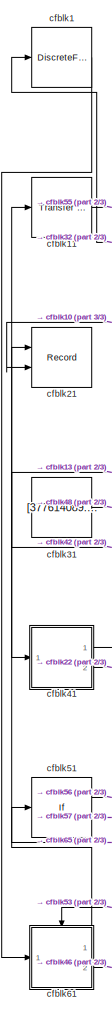
[diagram: root canvas - part 1/3, left side, full height]
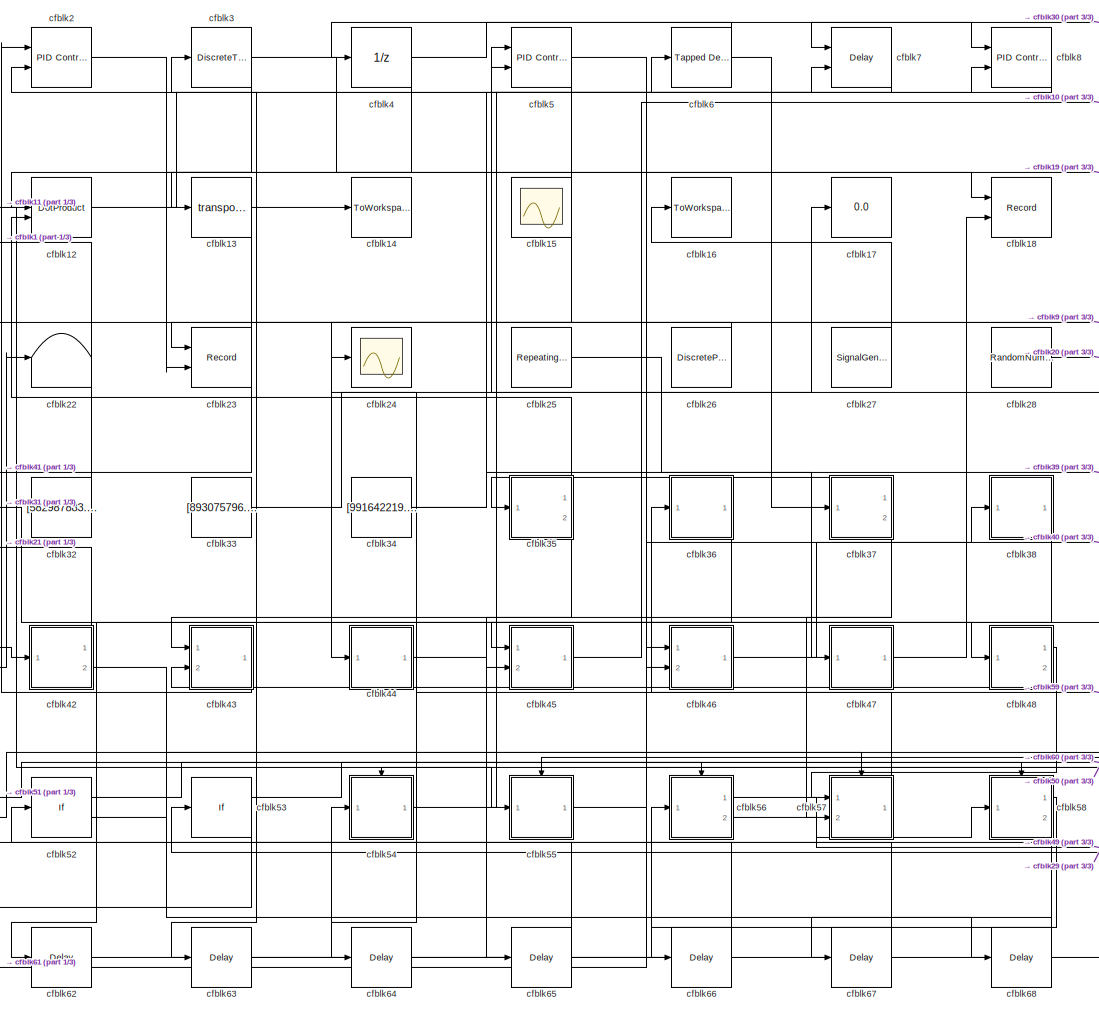
[diagram: root canvas - part 2/3, center side, full height]
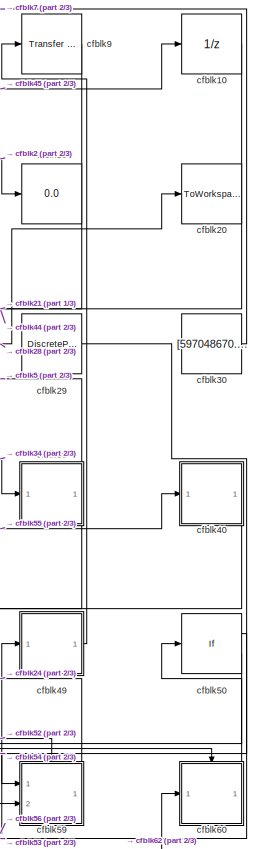
[diagram: root canvas - part 3/3, right side, full height]
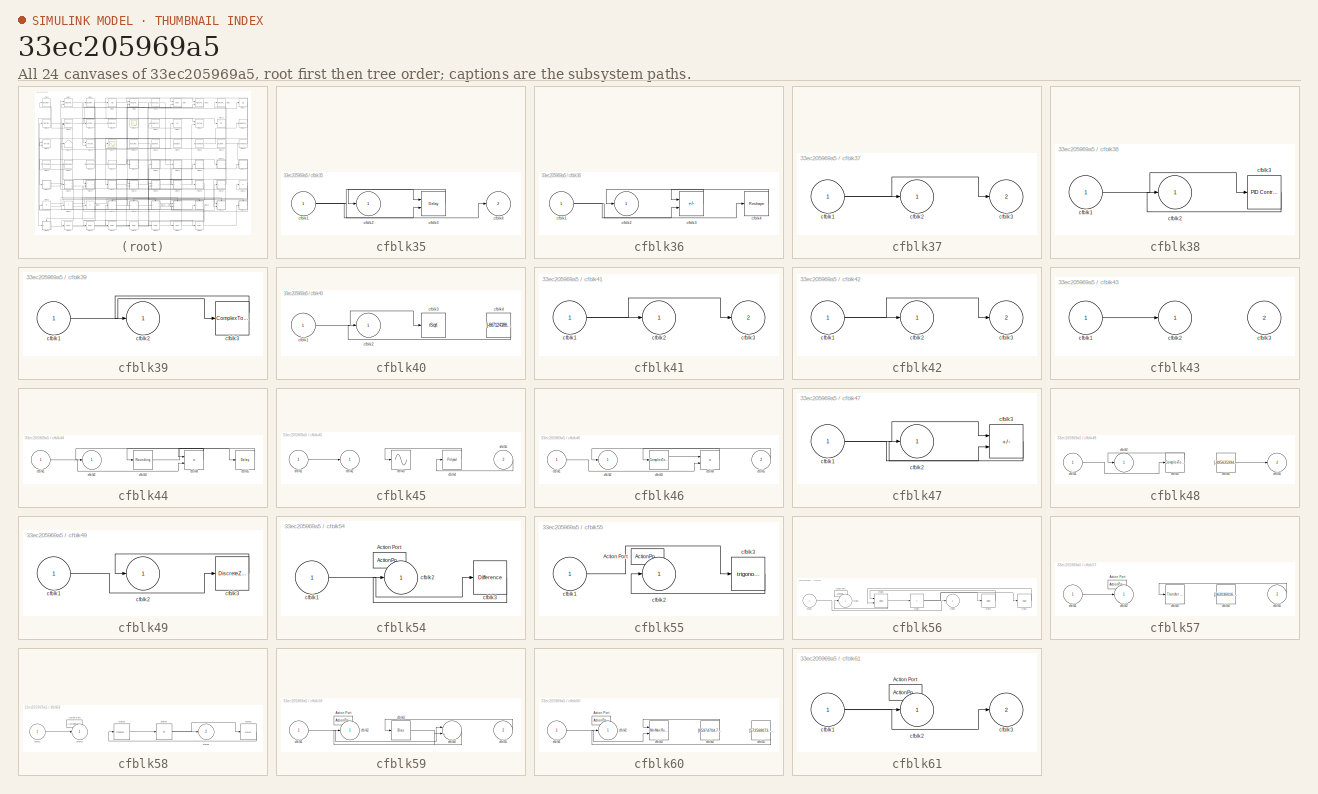
[diagram: thumbnail index - all 24 canvases of the model, root first then tree order]
MODEL slx_33ec205969a5
KIND model
CONFIG AbsTol = auto
CONFIG EnableMultiTasking = off
CONFIG FixedStep = auto
CONFIG MaxStep = auto
CONFIG MinStep = auto
CONFIG RelTol = 1e-3
CONFIG SampleTimeConstraint = Unconstrained
CONFIG SolverName = VariableStepAuto
CONFIG StartTime = 0.0
CONFIG StopTime = 10.0
BLOCK [DiscreteFir] cfblk1
  InputPortMap = u0
  OutputPortMap = o0
  Ports = [1, 1]
  SampleTime = 1
BLOCK [UnitDelay] cfblk10
  HasFrameUpgradeWarning = on
BLOCK [Reference] cfblk11  REF=simulink/Discrete/Transfer Fcn
Real Zero
  Ports = [1, 1]
  SourceBlock = simulink/Discrete/Transfer Fcn\nReal Zero
  SourceProductBaseCode = SL
  SourceType = Transfer Fcn Real Zero
BLOCK [DotProduct] cfblk12
  OutDataTypeStr = Inherit: Inherit via internal rule
BLOCK [Math] cfblk13
  Operator = transpose
  Ports = [1, 1]
BLOCK [ToWorkspace] cfblk14
  FixptAsFi = on
  MaxDataPoints = inf
  Ports = [1]
  SampleTime = -1
  SaveFormat = Timeseries
  VariableName = czsodvs
BLOCK [Scope] cfblk15
  Floating = on
  NumInputPorts = 1
  Ports = []
BLOCK [ToWorkspace] cfblk16
  FixptAsFi = on
  MaxDataPoints = inf
  Ports = [1]
  SampleTime = -1
  SaveFormat = Timeseries
  VariableName = khiprwf
BLOCK [Display] cfblk17
  Decimation = 1
  Ports = [1]
BLOCK [Record] cfblk18
  CompatibilityTag = XY
  FileSettingsInternal = {"entries":[{"content":{"excelSettings":{"content":{},"type":"Streamout.ExcelSettings"}},"type":"Streamout.FileSettingStorage","uuid":"d4ca884b-6ed6-4891-9e51-d09ac0b6b69e"}],"packageUris":["http://schema.mathworks.com/mf0/streamout_blocks/R2020a"],"version":"1.0"}
  Layout = [1 1]
  Ports = [2]
  SignalsInternal = {"entries":[{"content":{"signals":[{"content":{"blockPath":["sampleModel26/cfblk18"],"channel":[],"dimensions":[1,1],"domain":"sampleModel26/cfblk18","lineColor":"#a2142f","plots":[1],"port":1,"sid":[""],"signalID":1005,"signalName":"cfblk3"},"type":"RecordBlkView.Signal","uuid":"a261fcf9-e0b9-45cc-8216-5c8b8619bc2a"},{"content":{"blockPath":["sampleModel26/cfblk18"],"channel":[],"dimensions":[1],...<+380ch>
  VisualizationBindings = {"xyplotplugin":{"info":[{"series":[{"bindingParametersList":[{"parameter":"X-Axis","signalID":1005,"signalName":"cfblk3"},{"parameter":"Y-Axis","signalID":1009,"signalName":"cfblk47"}],"seriesID":9986}],"subplotID":1}]}}
BLOCK [Display] cfblk19
  Decimation = 1
  Ports = [1]
BLOCK [Reference] cfblk2  REF=slpidlib/PID Controller (2DOF)
  Ports = [2, 1]
  SourceBlock = slpidlib/PID Controller (2DOF)
  SourceProductBaseCode = SL
  SourceType = PID 2dof
BLOCK [ToWorkspace] cfblk20
  FixptAsFi = on
  MaxDataPoints = inf
  Ports = [1]
  SampleTime = -1
  SaveFormat = Timeseries
  VariableName = nlgtuki
BLOCK [Record] cfblk21
  CompatibilityTag = XY
  FileSettingsInternal = {"entries":[{"content":{"excelSettings":{"content":{},"type":"Streamout.ExcelSettings"}},"type":"Streamout.FileSettingStorage","uuid":"902d94bf-6ad9-4d8d-bb43-3e97950e27a8"}],"packageUris":["http://schema.mathworks.com/mf0/streamout_blocks/R2020a"],"version":"1.0"}
  Layout = [1 1]
  Ports = [2]
  SignalsInternal = {"entries":[{"content":{"signals":[{"content":{"blockPath":["sampleModel26/cfblk21"],"channel":[],"dimensions":[1,1],"domain":"sampleModel26/cfblk21","lineColor":"#a2142f","plots":[1],"port":1,"sid":[""],"signalID":1013,"signalName":"cfblk42:1"},"type":"RecordBlkView.Signal","uuid":"12224121-8beb-4598-b1fb-51b9937be4c3"},{"content":{"blockPath":["sampleModel26/cfblk21"],"channel":[],"dimensions":[...<+383ch>
  VisualizationBindings = {"xyplotplugin":{"info":[{"series":[{"bindingParametersList":[{"parameter":"X-Axis","signalID":1013,"signalName":"cfblk42:1"},{"parameter":"Y-Axis","signalID":1017,"signalName":"cfblk10"}],"seriesID":13624}],"subplotID":1}]}}
BLOCK [Terminator] cfblk22
BLOCK [Record] cfblk23
  CompatibilityTag = XY
  FileSettingsInternal = {"entries":[{"content":{"excelSettings":{"content":{},"type":"Streamout.ExcelSettings"}},"type":"Streamout.FileSettingStorage","uuid":"a11609d8-2a1b-417e-a440-ff965ac5fa11"}],"packageUris":["http://schema.mathworks.com/mf0/streamout_blocks/R2020a"],"version":"1.0"}
  Layout = [1 1]
  Ports = [2]
  SignalsInternal = {"entries":[{"content":{"signals":[{"content":{"blockPath":["sampleModel26/cfblk23"],"channel":[],"dimensions":[1],"domain":"sampleModel26/cfblk23","lineColor":"#a2142f","plots":[1],"port":1,"sid":[""],"signalID":1021,"signalName":"cfblk26"},"type":"RecordBlkView.Signal","uuid":"2700e2c5-e2e7-479b-8112-f551c1b5b9e0"},{"content":{"blockPath":["sampleModel26/cfblk23"],"channel":[],"dimensions":[1,1]...<+380ch>
  VisualizationBindings = {"xyplotplugin":{"info":[{"series":[{"bindingParametersList":[{"parameter":"X-Axis","signalID":1021,"signalName":"cfblk26"},{"parameter":"Y-Axis","signalID":1025,"signalName":"cfblk3"}],"seriesID":28488}],"subplotID":1}]}}
BLOCK [Scope] cfblk24
  Floating = off
  NumInputPorts = 1
  Ports = [1]
BLOCK [Reference] cfblk25  REF=simulink/Sources/Repeating
Sequence
Interpolated
  Ports = [0, 1]
  SourceBlock = simulink/Sources/Repeating\nSequence\nInterpolated
  SourceProductBaseCode = SL
  SourceType = Repeating Sequence Interpolated
BLOCK [DiscretePulseGenerator] cfblk26
  Amplitude = [285039313.385840]
  Period = [95692373.632031]
  PhaseDelay = [2.000000]
  Ports = [0, 1]
  PulseType = Time based
  PulseWidth = 5
BLOCK [SignalGenerator] cfblk27
  Amplitude = [819033828.996605]
  Ports = [0, 1]
  Units = rad/sec
  WaveForm = square
BLOCK [RandomNumber] cfblk28
  Mean = [40847.688215]
  SampleTime = 0.1
  Seed = [331896928.000000]
  Variance = [65157.945720]
BLOCK [DiscretePulseGenerator] cfblk29
  Amplitude = [43137341.195168]
  Period = [2476344.846735]
  PhaseDelay = [1.000000]
  Ports = [0, 1]
  PulseType = Time based
  PulseWidth = 5
BLOCK [DiscreteTransferFcn] cfblk3
  InputPortMap = u0
  Ports = [1, 1]
  SampleTime = 1
BLOCK [Constant] cfblk30
  SampleTime = 1
  Value = [597048670.545400]
BLOCK [Constant] cfblk31
  SampleTime = 1
  Value = [377614089.549144]
BLOCK [Constant] cfblk32
  SampleTime = 1
  Value = [582987883.891555]
BLOCK [Constant] cfblk33
  SampleTime = 1
  Value = [893075796.024884]
BLOCK [Constant] cfblk34
  SampleTime = 1
  Value = [991642219.354834]
BLOCK [SubSystem] cfblk35
  Ports = [1, 2]
  RequestExecContextInheritance = off
BLOCK [Inport] cfblk35/cfblk1
BLOCK [Outport] cfblk35/cfblk2
BLOCK [Delay] cfblk35/cfblk3
  DelayLengthSource = Input port
  InputPortMap = u0,p1
  Ports = [2, 1]
  SampleTime = 1
BLOCK [Outport] cfblk35/cfblk4
  Port = 2
BLOCK [SubSystem] cfblk36
  Ports = [1, 1]
  RequestExecContextInheritance = off
BLOCK [Inport] cfblk36/cfblk1
BLOCK [Outport] cfblk36/cfblk2
BLOCK [Sum] cfblk36/cfblk3
  IconShape = rectangular
  Inputs = +-
  Ports = [2, 1]
BLOCK [Reshape] cfblk36/cfblk4
  Ports = [1, 1]
BLOCK [SubSystem] cfblk37
  Ports = [1, 2]
  RequestExecContextInheritance = off
BLOCK [Inport] cfblk37/cfblk1
BLOCK [Outport] cfblk37/cfblk2
BLOCK [Outport] cfblk37/cfblk3
  Port = 2
BLOCK [SubSystem] cfblk38
  Ports = [1, 1]
  RequestExecContextInheritance = off
BLOCK [Inport] cfblk38/cfblk1
BLOCK [Outport] cfblk38/cfblk2
BLOCK [Reference] cfblk38/cfblk3  REF=slpidlib/PID Controller
  Ports = [1, 1]
  SourceBlock = slpidlib/PID Controller
  SourceProductBaseCode = SL
  SourceType = PID 1dof
BLOCK [SubSystem] cfblk39
  Ports = [1, 1]
  RequestExecContextInheritance = off
BLOCK [Inport] cfblk39/cfblk1
BLOCK [Outport] cfblk39/cfblk2
BLOCK [ComplexToMagnitudeAngle] cfblk39/cfblk3
  Ports = [1, 2]
BLOCK [UnitDelay] cfblk4
  HasFrameUpgradeWarning = on
BLOCK [SubSystem] cfblk40
  Ports = [1, 1]
  RequestExecContextInheritance = off
BLOCK [Inport] cfblk40/cfblk1
BLOCK [Outport] cfblk40/cfblk2
BLOCK [Sqrt] cfblk40/cfblk3
  AlgorithmType = Newton-Raphson
  Operator = rSqrt
BLOCK [Constant] cfblk40/cfblk4
  SampleTime = 1
  Value = [-667124386.739958]
BLOCK [SubSystem] cfblk41
  Ports = [1, 2]
  RequestExecContextInheritance = off
BLOCK [Inport] cfblk41/cfblk1
BLOCK [Outport] cfblk41/cfblk2
BLOCK [Outport] cfblk41/cfblk3
  Port = 2
BLOCK [SubSystem] cfblk42
  Ports = [1, 2]
  RequestExecContextInheritance = off
BLOCK [Inport] cfblk42/cfblk1
BLOCK [Outport] cfblk42/cfblk2
BLOCK [Outport] cfblk42/cfblk3
  Port = 2
BLOCK [SubSystem] cfblk43
  Ports = [2, 1]
  RequestExecContextInheritance = off
BLOCK [Inport] cfblk43/cfblk1
BLOCK [Outport] cfblk43/cfblk2
BLOCK [Inport] cfblk43/cfblk3
  Port = 2
BLOCK [SubSystem] cfblk44
  Ports = [1, 1]
  RequestExecContextInheritance = off
BLOCK [Inport] cfblk44/cfblk1
BLOCK [Outport] cfblk44/cfblk2
BLOCK [Rounding] cfblk44/cfblk3
BLOCK [Product] cfblk44/cfblk4
  Ports = [2, 1]
BLOCK [Delay] cfblk44/cfblk5
  InputPortMap = u0
  Ports = [1, 1]
  SampleTime = 1
BLOCK [SubSystem] cfblk45
  Ports = [2, 1]
  RequestExecContextInheritance = off
BLOCK [Inport] cfblk45/cfblk1
BLOCK [Outport] cfblk45/cfblk2
BLOCK [Sin] cfblk45/cfblk3
  Ports = [1, 1]
  SampleTime = 0
  TimeSource = Use external signal
BLOCK [Polyval] cfblk45/cfblk4
  Coefs = [ +2.081618890e-019, -1.441693666e-014, +4.719686976e-010, -8.536869453e-006, +1.621573104e-001, -8.087801117e+001 ]
BLOCK [Inport] cfblk45/cfblk5
  Port = 2
BLOCK [SubSystem] cfblk46
  Ports = [2, 1]
  RequestExecContextInheritance = off
BLOCK [Inport] cfblk46/cfblk1
BLOCK [Outport] cfblk46/cfblk2
BLOCK [ComplexToMagnitudeAngle] cfblk46/cfblk3
  Ports = [1, 2]
BLOCK [Product] cfblk46/cfblk4
  Inputs = **
  Ports = [2, 1]
BLOCK [Inport] cfblk46/cfblk5
  Port = 2
BLOCK [SubSystem] cfblk47
  Ports = [1, 1]
  RequestExecContextInheritance = off
BLOCK [Inport] cfblk47/cfblk1
BLOCK [Outport] cfblk47/cfblk2
BLOCK [Sum] cfblk47/cfblk3
  IconShape = rectangular
  Inputs = +-
  Ports = [2, 1]
BLOCK [SubSystem] cfblk48
  Ports = [1, 2]
  RequestExecContextInheritance = off
BLOCK [Inport] cfblk48/cfblk1
BLOCK [Outport] cfblk48/cfblk2
BLOCK [ComplexToMagnitudeAngle] cfblk48/cfblk3
  Ports = [1, 2]
BLOCK [Constant] cfblk48/cfblk4
  SampleTime = 1
  Value = [-895635994.640015]
BLOCK [Outport] cfblk48/cfblk5
  Port = 2
BLOCK [SubSystem] cfblk49
  Ports = [1, 1]
  RequestExecContextInheritance = off
BLOCK [Inport] cfblk49/cfblk1
BLOCK [Outport] cfblk49/cfblk2
BLOCK [DiscreteZeroPole] cfblk49/cfblk3
  Gain = 1
  Poles = [0 0.5]
BLOCK [Reference] cfblk5  REF=slpidlib/PID Controller (2DOF)
  Ports = [2, 1]
  SourceBlock = slpidlib/PID Controller (2DOF)
  SourceProductBaseCode = SL
  SourceType = PID 2dof
BLOCK [If] cfblk50
  IfExpression = u1 >= 0
  Ports = [1, 2]
  SampleTime = 1
BLOCK [If] cfblk51
  IfExpression = u1 >= 0
  Ports = [1, 2]
  SampleTime = 1
BLOCK [If] cfblk52
  IfExpression = u1 >= 0
  Ports = [1, 2]
  SampleTime = 1
BLOCK [If] cfblk53
  IfExpression = u1 >= 0
  Ports = [1, 2]
  SampleTime = 1
BLOCK [SubSystem] cfblk54
  Ports = [1, 1, 0, 0, 0, 0, 0, 1]
  RequestExecContextInheritance = off
  TreatAsAtomicUnit = on
BLOCK [ActionPort] cfblk54/Action Port
  ActionPortLabel = if(u1 >= 0)
BLOCK [Inport] cfblk54/cfblk1
BLOCK [Outport] cfblk54/cfblk2
BLOCK [Reference] cfblk54/cfblk3  REF=simulink/Discrete/Difference
  Ports = [1, 1]
  SourceBlock = simulink/Discrete/Difference
  SourceProductBaseCode = SL
  SourceType = Difference
BLOCK [SubSystem] cfblk55
  Ports = [1, 1, 0, 0, 0, 0, 0, 1]
  RequestExecContextInheritance = off
  TreatAsAtomicUnit = on
BLOCK [ActionPort] cfblk55/Action Port
  ActionPortLabel = else
BLOCK [Inport] cfblk55/cfblk1
BLOCK [Outport] cfblk55/cfblk2
BLOCK [Trigonometry] cfblk55/cfblk3
  Ports = [1, 1]
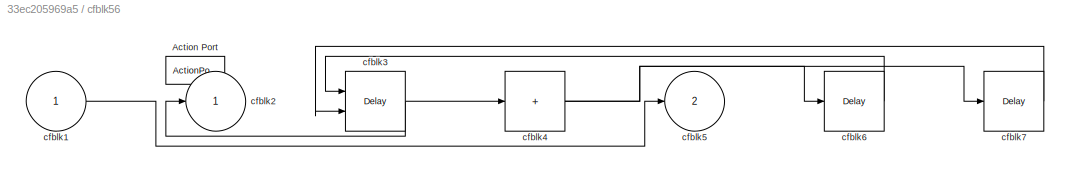
BLOCK [SubSystem] cfblk56
  Ports = [1, 2, 0, 0, 0, 0, 0, 1]
  RequestExecContextInheritance = off
  TreatAsAtomicUnit = on
BLOCK [ActionPort] cfblk56/Action Port
  ActionPortLabel = if(u1 >= 0)
BLOCK [Inport] cfblk56/cfblk1
BLOCK [Outport] cfblk56/cfblk2
BLOCK [Delay] cfblk56/cfblk3
  InputPortMap = u0,e6
  Ports = [2, 1]
  ShowEnablePort = on
BLOCK [Sum] cfblk56/cfblk4
  IconShape = rectangular
  Inputs = +
  Ports = [1, 1]
BLOCK [Outport] cfblk56/cfblk5
  Port = 2
BLOCK [Delay] cfblk56/cfblk6
  InputPortMap = u0
  Ports = [1, 1]
BLOCK [Delay] cfblk56/cfblk7
  InputPortMap = u0
  Ports = [1, 1]
BLOCK [SubSystem] cfblk57
  Ports = [2, 1, 0, 0, 0, 0, 0, 1]
  RequestExecContextInheritance = off
  TreatAsAtomicUnit = on
BLOCK [ActionPort] cfblk57/Action Port
  ActionPortLabel = else
BLOCK [Inport] cfblk57/cfblk1
BLOCK [Outport] cfblk57/cfblk2
BLOCK [Reference] cfblk57/cfblk3  REF=simulink/Discrete/Transfer Fcn
Lead or Lag
  Ports = [1, 1]
  SourceBlock = simulink/Discrete/Transfer Fcn\nLead or Lag
  SourceProductBaseCode = SL
  SourceType = Lead or Lag Compensator
BLOCK [Constant] cfblk57/cfblk4
  SampleTime = 1
  Value = [362036016.208331]
BLOCK [Inport] cfblk57/cfblk5
  Port = 2
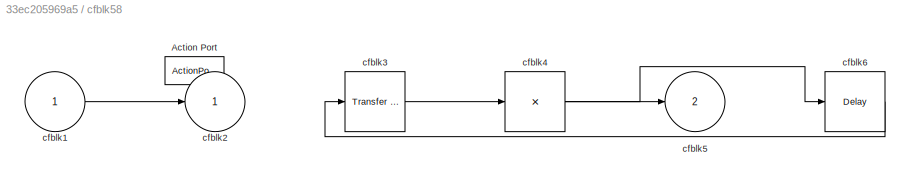
BLOCK [SubSystem] cfblk58
  Ports = [1, 2, 0, 0, 0, 0, 0, 1]
  RequestExecContextInheritance = off
  TreatAsAtomicUnit = on
BLOCK [ActionPort] cfblk58/Action Port
  ActionPortLabel = if(u1 >= 0)
BLOCK [Inport] cfblk58/cfblk1
BLOCK [Outport] cfblk58/cfblk2
BLOCK [Reference] cfblk58/cfblk3  REF=simulink/Discrete/Transfer Fcn
Real Zero
  Ports = [1, 1]
  SourceBlock = simulink/Discrete/Transfer Fcn\nReal Zero
  SourceProductBaseCode = SL
  SourceType = Transfer Fcn Real Zero
BLOCK [Product] cfblk58/cfblk4
  Inputs = *
  Ports = [1, 1]
BLOCK [Outport] cfblk58/cfblk5
  Port = 2
BLOCK [Delay] cfblk58/cfblk6
  InputPortMap = u0
  Ports = [1, 1]
BLOCK [SubSystem] cfblk59
  Ports = [2, 1, 0, 0, 0, 0, 0, 1]
  RequestExecContextInheritance = off
  TreatAsAtomicUnit = on
BLOCK [ActionPort] cfblk59/Action Port
  ActionPortLabel = else
BLOCK [Inport] cfblk59/cfblk1
BLOCK [Outport] cfblk59/cfblk2
BLOCK [Bias] cfblk59/cfblk3
  Bias = [16626018.080489]
  SaturateOnIntegerOverflow = off
BLOCK [Sum] cfblk59/cfblk4
  Inputs = |++
  Ports = [2, 1]
BLOCK [Inport] cfblk59/cfblk5
  Port = 2
BLOCK [Reference] cfblk6  REF=simulink/Discrete/Tapped Delay
  Ports = [1, 1]
  SourceBlock = simulink/Discrete/Tapped Delay
  SourceProductBaseCode = SL
  SourceType = Tapped Delay Line
BLOCK [SubSystem] cfblk60
  Ports = [1, 1, 0, 0, 0, 0, 0, 1]
  RequestExecContextInheritance = off
  TreatAsAtomicUnit = on
BLOCK [ActionPort] cfblk60/Action Port
  ActionPortLabel = if(u1 >= 0)
BLOCK [Inport] cfblk60/cfblk1
BLOCK [Outport] cfblk60/cfblk2
BLOCK [Reference] cfblk60/cfblk3  REF=simulink/Math
Operations/MinMax
Running
Resettable
  Ports = [2, 1]
  SourceBlock = simulink/Math\nOperations/MinMax\nRunning\nResettable
  SourceProductBaseCode = SL
  SourceType = MinMax Running Resettable
BLOCK [Constant] cfblk60/cfblk4
  SampleTime = 1
  Value = [85974704.748624]
BLOCK [Constant] cfblk60/cfblk5
  SampleTime = 1
  Value = [572568073.259116]
BLOCK [SubSystem] cfblk61
  Ports = [1, 2, 0, 0, 0, 0, 0, 1]
  RequestExecContextInheritance = off
  TreatAsAtomicUnit = on
BLOCK [ActionPort] cfblk61/Action Port
  ActionPortLabel = else
BLOCK [Inport] cfblk61/cfblk1
BLOCK [Outport] cfblk61/cfblk2
BLOCK [Outport] cfblk61/cfblk3
  Port = 2
BLOCK [Delay] cfblk62
  InputPortMap = u0
  Ports = [1, 1]
  SampleTime = 1
BLOCK [Delay] cfblk63
  InputPortMap = u0
  Ports = [1, 1]
  SampleTime = 1
BLOCK [Delay] cfblk64
  InputPortMap = u0
  Ports = [1, 1]
  SampleTime = 1
BLOCK [Delay] cfblk65
  InputPortMap = u0
  Ports = [1, 1]
  SampleTime = 1
BLOCK [Delay] cfblk66
  InputPortMap = u0
  Ports = [1, 1]
  SampleTime = 1
BLOCK [Delay] cfblk67
  InputPortMap = u0
  Ports = [1, 1]
  SampleTime = 1
BLOCK [Delay] cfblk68
  InputPortMap = u0
  Ports = [1, 1]
  SampleTime = 1
BLOCK [Delay] cfblk7
  DelayLengthSource = Input port
  InputPortMap = u0,p1
  Ports = [2, 1]
  SampleTime = 1
BLOCK [Reference] cfblk8  REF=slpidlib/PID Controller (2DOF)
  Ports = [2, 1]
  SourceBlock = slpidlib/PID Controller (2DOF)
  SourceProductBaseCode = SL
  SourceType = PID 2dof
BLOCK [Reference] cfblk9  REF=simulink/Discrete/Transfer Fcn
First Order
  Ports = [1, 1]
  SourceBlock = simulink/Discrete/Transfer Fcn\nFirst Order
  SourceProductBaseCode = SL
  SourceType = First Order Transfer Fcn
LINE cfblk10:1 -> cfblk21:2
LINE cfblk11:1 -> cfblk55:1
LINE cfblk12:1 -> cfblk7:2
NET cfblk13:1 -> cfblk14:1, cfblk41:1
LINE cfblk1:1 -> cfblk61:1
LINE cfblk25:1 -> cfblk47:1
LINE cfblk26:1 -> cfblk23:1
LINE cfblk27:1 -> cfblk16:1
LINE cfblk28:1 -> cfblk20:1
LINE cfblk29:1 -> cfblk53:1
LINE cfblk2:1 -> cfblk19:1
LINE cfblk30:1 -> cfblk7:1
LINE cfblk31:1 -> cfblk48:1
LINE cfblk32:1 -> cfblk1:1
LINE cfblk33:1 -> cfblk17:1
NET cfblk34:1 -> cfblk39:1, cfblk8:2
NET cfblk35/cfblk1:1 -> cfblk35/cfblk3:1, cfblk35/cfblk3:2, cfblk35/cfblk4:1
LINE cfblk35/cfblk3:1 -> cfblk35/cfblk2:1
LINE cfblk35:1 -> cfblk12:2
LINE cfblk35:2 -> cfblk45:2
NET cfblk36/cfblk1:1 -> cfblk36/cfblk3:2, cfblk36/cfblk4:1
LINE cfblk36/cfblk3:1 -> cfblk36/cfblk2:1
LINE cfblk36/cfblk4:1 -> cfblk36/cfblk3:1
LINE cfblk36:1 -> cfblk64:1
NET cfblk37/cfblk1:1 -> cfblk37/cfblk2:1, cfblk37/cfblk3:1
LINE cfblk37:1 -> cfblk35:1
NET cfblk37:2 -> cfblk43:1, cfblk57:2
LINE cfblk38/cfblk1:1 -> cfblk38/cfblk3:1
LINE cfblk38/cfblk3:1 -> cfblk38/cfblk2:1
LINE cfblk38:1 -> cfblk62:1
LINE cfblk39/cfblk1:1 -> cfblk39/cfblk3:1
LINE cfblk39/cfblk3:1 -> cfblk39/cfblk2:1
NET cfblk39:1 -> cfblk59:2, cfblk5:1
NET cfblk3:1 -> cfblk13:1, cfblk18:1, cfblk23:2
LINE cfblk40/cfblk1:1 -> cfblk40/cfblk3:1
LINE cfblk40/cfblk4:1 -> cfblk40/cfblk2:1
LINE cfblk40:1 -> cfblk45:1
NET cfblk41/cfblk1:1 -> cfblk41/cfblk2:1, cfblk41/cfblk3:1
LINE cfblk41:1 -> cfblk42:1
LINE cfblk41:2 -> cfblk22:1
NET cfblk42/cfblk1:1 -> cfblk42/cfblk2:1, cfblk42/cfblk3:1
LINE cfblk42:1 -> cfblk21:1
LINE cfblk42:2 -> cfblk68:1
LINE cfblk43/cfblk1:1 -> cfblk43/cfblk2:1
LINE cfblk43:1 -> cfblk2:1
LINE cfblk44/cfblk1:1 -> cfblk44/cfblk4:2
LINE cfblk44/cfblk3:1 -> cfblk44/cfblk5:1
NET cfblk44/cfblk4:1 -> cfblk44/cfblk2:1, cfblk44/cfblk3:1
LINE cfblk44/cfblk5:1 -> cfblk44/cfblk4:1
LINE cfblk44:1 -> cfblk65:1
LINE cfblk45/cfblk1:1 -> cfblk45/cfblk2:1
LINE cfblk45/cfblk4:1 -> cfblk45/cfblk3:1
LINE cfblk45/cfblk5:1 -> cfblk45/cfblk4:1
LINE cfblk45:1 -> cfblk10:1
LINE cfblk46/cfblk1:1 -> cfblk46/cfblk4:2
LINE cfblk46/cfblk3:1 -> cfblk46/cfblk4:1
LINE cfblk46/cfblk4:1 -> cfblk46/cfblk2:1
LINE cfblk46/cfblk5:1 -> cfblk46/cfblk3:1
LINE cfblk46:1 -> cfblk38:1
NET cfblk47/cfblk1:1 -> cfblk47/cfblk3:1, cfblk47/cfblk3:2
LINE cfblk47/cfblk3:1 -> cfblk47/cfblk2:1
LINE cfblk47:1 -> cfblk18:2
LINE cfblk48/cfblk1:1 -> cfblk48/cfblk3:1
LINE cfblk48/cfblk3:1 -> cfblk48/cfblk2:1
LINE cfblk48/cfblk4:1 -> cfblk48/cfblk5:1
LINE cfblk48:1 -> cfblk57:1
LINE cfblk48:2 -> cfblk43:2
LINE cfblk49/cfblk1:1 -> cfblk49/cfblk3:1
LINE cfblk49/cfblk3:1 -> cfblk49/cfblk2:1
LINE cfblk49:1 -> cfblk9:1
NET cfblk4:1 -> cfblk12:1, cfblk8:1
LINE cfblk50:1 -> cfblk54:ifaction
LINE cfblk50:2 -> cfblk55:ifaction
LINE cfblk51:1 -> cfblk56:ifaction
LINE cfblk51:2 -> cfblk57:ifaction
LINE cfblk52:1 -> cfblk58:ifaction
LINE cfblk52:2 -> cfblk59:ifaction
LINE cfblk53:1 -> cfblk60:ifaction
LINE cfblk53:2 -> cfblk61:ifaction
LINE cfblk54/cfblk1:1 -> cfblk54/cfblk3:1
LINE cfblk54/cfblk3:1 -> cfblk54/cfblk2:1
LINE cfblk54:1 -> cfblk6:1
LINE cfblk55/cfblk1:1 -> cfblk55/cfblk3:1
LINE cfblk55/cfblk3:1 -> cfblk55/cfblk2:1
LINE cfblk55:1 -> cfblk40:1
LINE cfblk56/cfblk1:1 -> cfblk56/cfblk5:1
NET cfblk56/cfblk3:1 -> cfblk56/cfblk2:1, cfblk56/cfblk4:1
NET cfblk56/cfblk4:1 -> cfblk56/cfblk6:1, cfblk56/cfblk7:1
LINE cfblk56/cfblk6:1 -> cfblk56/cfblk3:1
LINE cfblk56/cfblk7:1 -> cfblk56/cfblk3:2
LINE cfblk56:1 -> cfblk49:1
LINE cfblk56:2 -> cfblk58:1
LINE cfblk57/cfblk1:1 -> cfblk57/cfblk2:1
LINE cfblk57/cfblk5:1 -> cfblk57/cfblk3:1
LINE cfblk57:1 -> cfblk36:1
LINE cfblk58/cfblk1:1 -> cfblk58/cfblk2:1
LINE cfblk58/cfblk3:1 -> cfblk58/cfblk4:1
NET cfblk58/cfblk4:1 -> cfblk58/cfblk5:1, cfblk58/cfblk6:1
LINE cfblk58/cfblk6:1 -> cfblk58/cfblk3:1
LINE cfblk58:1 -> cfblk66:1
LINE cfblk58:2 -> cfblk67:1
LINE cfblk59/cfblk1:1 -> cfblk59/cfblk4:1
LINE cfblk59/cfblk3:1 -> cfblk59/cfblk4:2
LINE cfblk59/cfblk4:1 -> cfblk59/cfblk2:1
LINE cfblk59/cfblk5:1 -> cfblk59/cfblk3:1
LINE cfblk59:1 -> cfblk24:1
NET cfblk5:1 -> cfblk59:1, cfblk63:1
LINE cfblk60/cfblk1:1 -> cfblk60/cfblk3:2
LINE cfblk60/cfblk4:1 -> cfblk60/cfblk3:1
LINE cfblk60/cfblk5:1 -> cfblk60/cfblk2:1
LINE cfblk60:1 -> cfblk50:1
NET cfblk61/cfblk1:1 -> cfblk61/cfblk2:1, cfblk61/cfblk3:1
LINE cfblk61:1 -> cfblk11:1
LINE cfblk61:2 -> cfblk46:2
LINE cfblk62:1 -> cfblk60:1
LINE cfblk63:1 -> cfblk54:1
LINE cfblk64:1 -> cfblk56:1
LINE cfblk65:1 -> cfblk51:1
LINE cfblk66:1 -> cfblk46:1
LINE cfblk67:1 -> cfblk52:1
LINE cfblk68:1 -> cfblk3:1
NET cfblk6:1 -> cfblk37:1, cfblk4:1
LINE cfblk7:1 -> cfblk5:2
LINE cfblk8:1 -> cfblk2:2
LINE cfblk9:1 -> cfblk44:1
note: NET lines group one-source signal fan-out (src -> all destinations, sorted); 1:1 wires keep LINE
